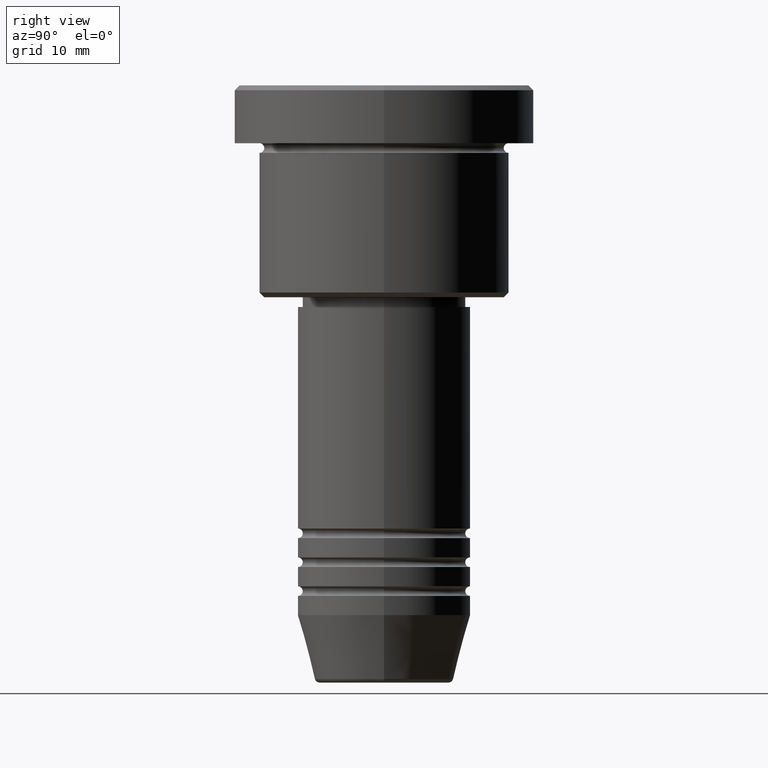
[diagram: clean part render]
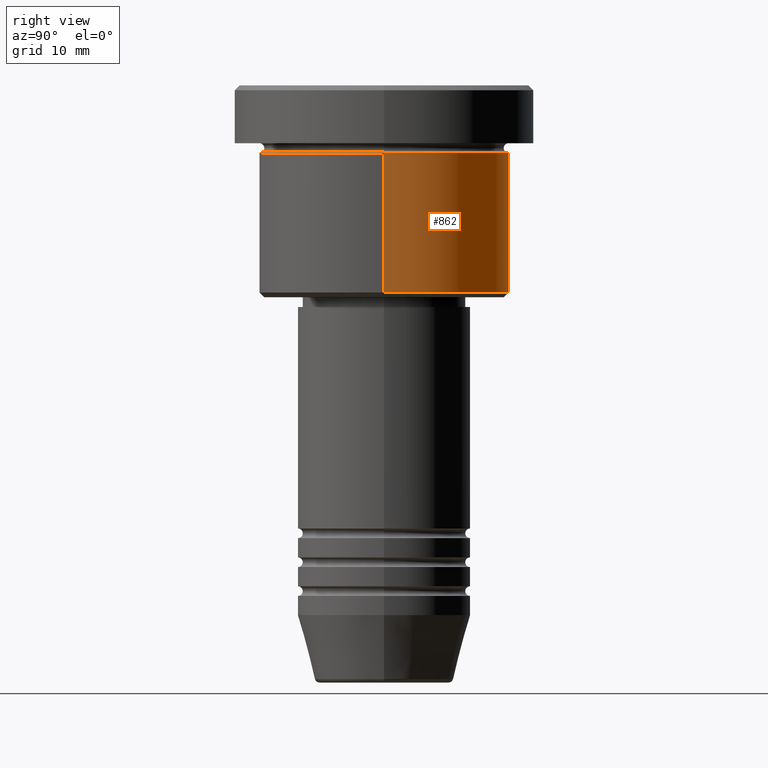
[diagram: same view with one face highlighted and labeled with its STEP entity id]
A machine part, right view. The second image highlights one B-rep face of the part: STEP entity #862.
In plain terms, the highlighted cylindrical surface (partial cylindrical patch) has radius 13 mm, axis along (-0, -0, 1).
Its self-contained STEP definition (entity closure, byte-faithful):
#188 = CARTESIAN_POINT ( 'NONE',  ( 13.00000000000000000, 0.000000000000000000, -6.999999999999995559 ) ) ;
#206 = EDGE_CURVE ( 'NONE', #901, #519, #590, .T. ) ;
#244 = AXIS2_PLACEMENT_3D ( 'NONE', #353, #646, #1009 ) ;
#252 = CARTESIAN_POINT ( 'NONE',  ( -13.00000000000000000, 1.592040838891559095E-15, 0.000000000000000000 ) ) ;
#262 = VECTOR ( 'NONE', #267, 1000.000000000000000 ) ;
#267 = DIRECTION ( 'NONE',  ( -0.000000000000000000, -0.000000000000000000, 1.000000000000000000 ) ) ;
#269 = CARTESIAN_POINT ( 'NONE',  ( -13.00000000000000000, 1.592040838891559095E-15, -6.999999999999995559 ) ) ;
#290 = CARTESIAN_POINT ( 'NONE',  ( 0.000000000000000000, 0.000000000000000000, -6.999999999999995559 ) ) ;
#309 = VERTEX_POINT ( 'NONE', #1049 ) ;
#330 = EDGE_CURVE ( 'NONE', #309, #519, #435, .T. ) ;
#353 = CARTESIAN_POINT ( 'NONE',  ( 0.000000000000000000, 0.000000000000000000, 0.000000000000000000 ) ) ;
#385 = ORIENTED_EDGE ( 'NONE', *, *, #206, .F. ) ;
#410 = DIRECTION ( 'NONE',  ( -0.000000000000000000, -0.000000000000000000, 1.000000000000000000 ) ) ;
#435 = LINE ( 'NONE', #252, #555 ) ;
#511 = CIRCLE ( 'NONE', #672, 13.00000000000000000 ) ;
#519 = VERTEX_POINT ( 'NONE', #269 ) ;
#548 = LINE ( 'NONE', #739, #262 ) ;
#555 = VECTOR ( 'NONE', #410, 1000.000000000000000 ) ;
#590 = CIRCLE ( 'NONE', #1036, 13.00000000000000000 ) ;
#604 = ORIENTED_EDGE ( 'NONE', *, *, #330, .T. ) ;
#646 = DIRECTION ( 'NONE',  ( -0.000000000000000000, -0.000000000000000000, 1.000000000000000000 ) ) ;
#664 = DIRECTION ( 'NONE',  ( 1.000000000000000000, 0.000000000000000000, 0.000000000000000000 ) ) ;
#672 = AXIS2_PLACEMENT_3D ( 'NONE', #795, #701, #1150 ) ;
#701 = DIRECTION ( 'NONE',  ( -0.000000000000000000, -0.000000000000000000, 1.000000000000000000 ) ) ;
#717 = CYLINDRICAL_SURFACE ( 'NONE', #244, 13.00000000000000000 ) ;
#718 = ORIENTED_EDGE ( 'NONE', *, *, #1148, .T. ) ;
#739 = CARTESIAN_POINT ( 'NONE',  ( 13.00000000000000000, 0.000000000000000000, 0.000000000000000000 ) ) ;
#795 = CARTESIAN_POINT ( 'NONE',  ( 0.000000000000000000, 0.000000000000000000, -21.49999999999998579 ) ) ;
#825 = FACE_OUTER_BOUND ( 'NONE', #947, .T. ) ;
#862 = ADVANCED_FACE ( 'NONE', ( #825 ), #717, .T. ) ;
#882 = ORIENTED_EDGE ( 'NONE', *, *, #918, .F. ) ;
#901 = VERTEX_POINT ( 'NONE', #188 ) ;
#918 = EDGE_CURVE ( 'NONE', #962, #901, #548, .T. ) ;
#946 = DIRECTION ( 'NONE',  ( -0.000000000000000000, -0.000000000000000000, 1.000000000000000000 ) ) ;
#947 = EDGE_LOOP ( 'NONE', ( #718, #604, #385, #882 ) ) ;
#962 = VERTEX_POINT ( 'NONE', #1075 ) ;
#1009 = DIRECTION ( 'NONE',  ( 1.000000000000000000, 0.000000000000000000, 0.000000000000000000 ) ) ;
#1036 = AXIS2_PLACEMENT_3D ( 'NONE', #290, #946, #664 ) ;
#1049 = CARTESIAN_POINT ( 'NONE',  ( -13.00000000000000000, 1.592040838891559095E-15, -21.49999999999998579 ) ) ;
#1075 = CARTESIAN_POINT ( 'NONE',  ( 13.00000000000000000, 0.000000000000000000, -21.49999999999998579 ) ) ;
#1148 = EDGE_CURVE ( 'NONE', #962, #309, #511, .T. ) ;
#1150 = DIRECTION ( 'NONE',  ( -1.000000000000000000, 0.000000000000000000, 0.000000000000000000 ) ) ;